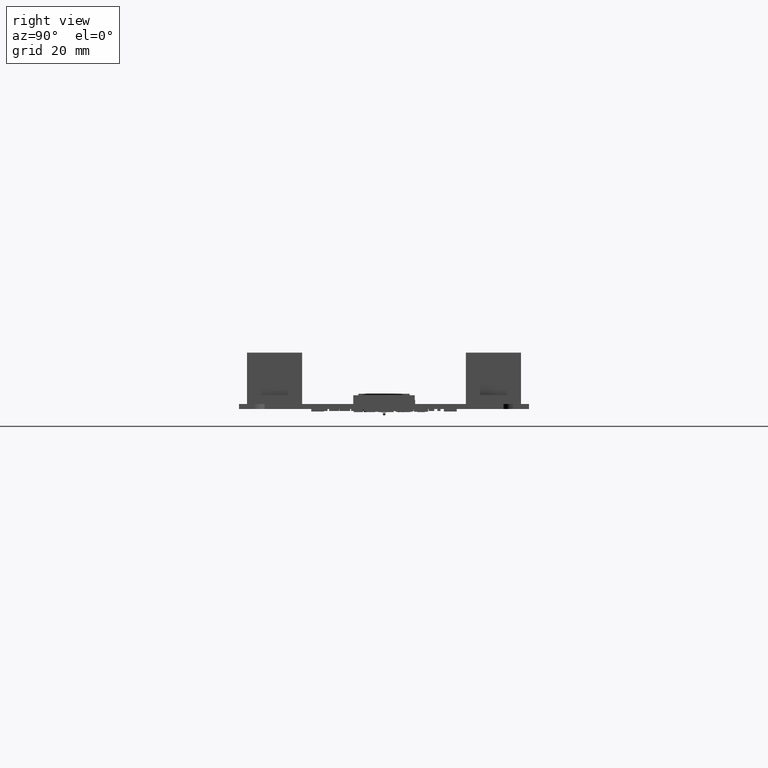
[diagram: clean part render]
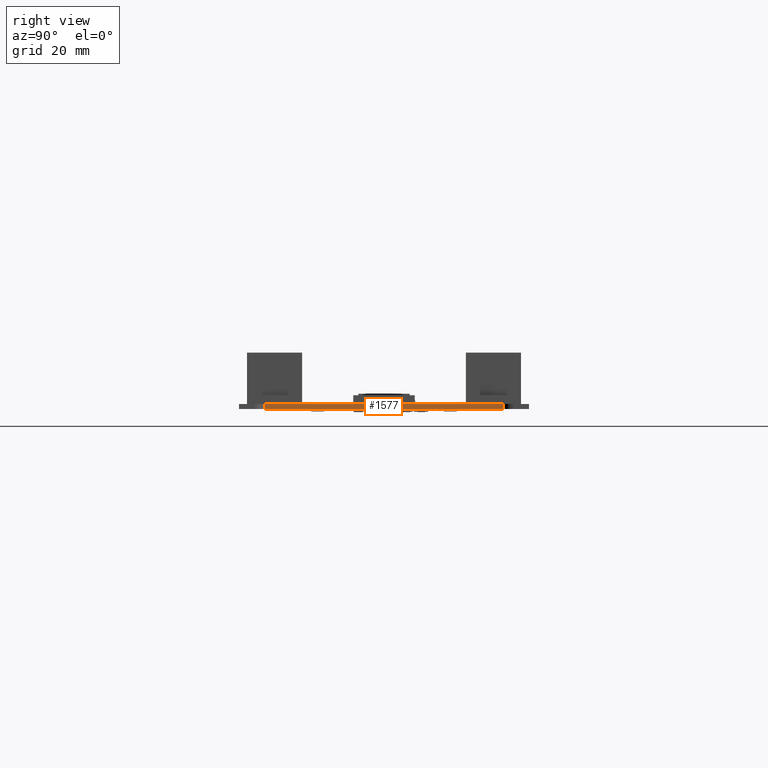
[diagram: same view with one face highlighted and labeled with its STEP entity id]
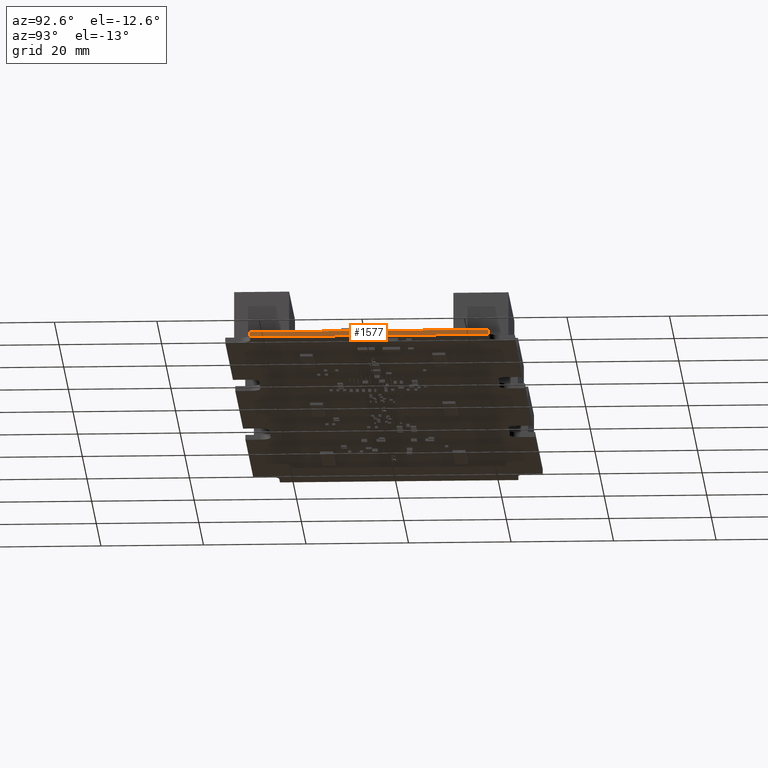
[diagram: same view with one face highlighted and labeled with its STEP entity id]
A machine part, right view. The second image highlights one B-rep face of the part: STEP entity #1577.
A second angle (auxiliary view) of the same face is appended — the face is thin or edge-on in the first view.
In plain terms, the highlighted planar face has unit normal (1, 0, 0).
Its self-contained STEP definition (entity closure, byte-faithful):
#1552 = VERTEX_POINT('',#1553);
#1553 = CARTESIAN_POINT('',(130.30000305175,23.25,0.97300796));
#1559 = EDGE_CURVE('',#1560,#1552,#1562,.T.);
#1560 = VERTEX_POINT('',#1561);
#1561 = CARTESIAN_POINT('',(130.30000305175,23.25,0.E+000));
#1562 = LINE('',#1563,#1564);
#1563 = CARTESIAN_POINT('',(130.30000305175,23.25,0.E+000));
#1564 = VECTOR('',#1565,1.);
#1565 = DIRECTION('',(0.E+000,0.E+000,1.));
#1577 = ADVANCED_FACE('',(#1578),#1603,.T.);
#1578 = FACE_BOUND('',#1579,.T.);
#1579 = EDGE_LOOP('',(#1580,#1581,#1589,#1597));
#1580 = ORIENTED_EDGE('',*,*,#1559,.T.);
#1581 = ORIENTED_EDGE('',*,*,#1582,.T.);
#1582 = EDGE_CURVE('',#1552,#1583,#1585,.T.);
#1583 = VERTEX_POINT('',#1584);
#1584 = CARTESIAN_POINT('',(130.30000305175,-23.25,0.97300796));
#1585 = LINE('',#1586,#1587);
#1586 = CARTESIAN_POINT('',(130.30000305175,23.25,0.97300796));
#1587 = VECTOR('',#1588,1.);
#1588 = DIRECTION('',(0.E+000,-1.,0.E+000));
#1589 = ORIENTED_EDGE('',*,*,#1590,.F.);
#1590 = EDGE_CURVE('',#1591,#1583,#1593,.T.);
#1591 = VERTEX_POINT('',#1592);
#1592 = CARTESIAN_POINT('',(130.30000305175,-23.25,0.E+000));
#1593 = LINE('',#1594,#1595);
#1594 = CARTESIAN_POINT('',(130.30000305175,-23.25,0.E+000));
#1595 = VECTOR('',#1596,1.);
#1596 = DIRECTION('',(0.E+000,0.E+000,1.));
#1597 = ORIENTED_EDGE('',*,*,#1598,.F.);
#1598 = EDGE_CURVE('',#1560,#1591,#1599,.T.);
#1599 = LINE('',#1600,#1601);
#1600 = CARTESIAN_POINT('',(130.30000305175,23.25,0.E+000));
#1601 = VECTOR('',#1602,1.);
#1602 = DIRECTION('',(0.E+000,-1.,0.E+000));
#1603 = PLANE('',#1604);
#1604 = AXIS2_PLACEMENT_3D('',#1605,#1606,#1607);
#1605 = CARTESIAN_POINT('',(130.30000305175,23.25,0.E+000));
#1606 = DIRECTION('',(1.,0.E+000,-0.E+000));
#1607 = DIRECTION('',(0.E+000,-1.,0.E+000));